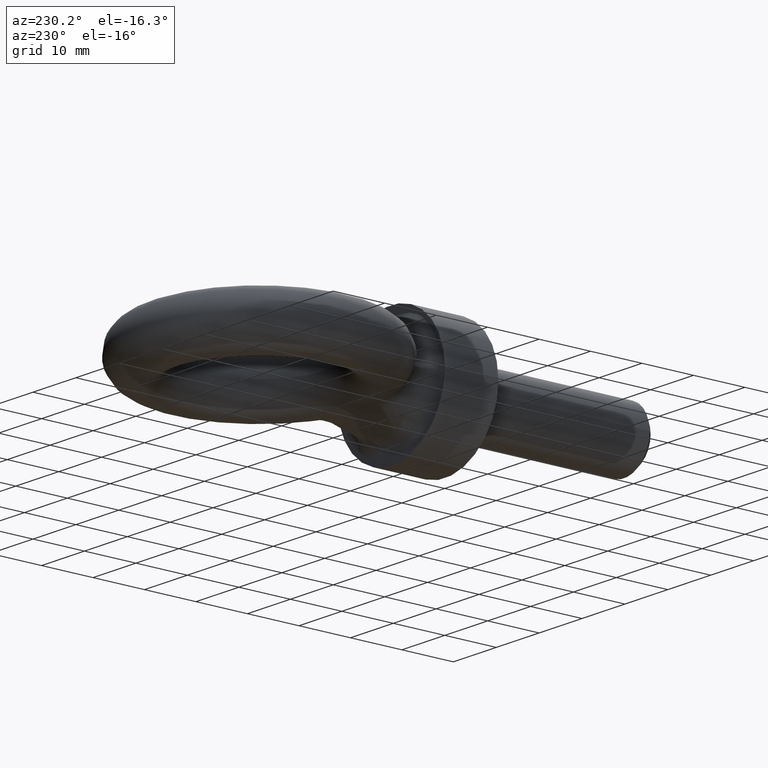
[diagram: clean part render]
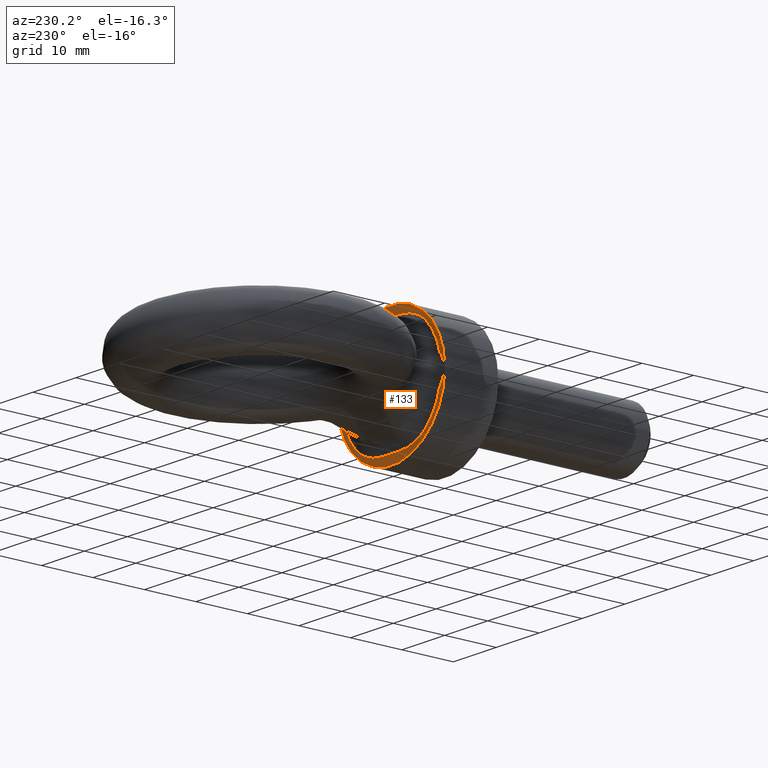
[diagram: same view with one face highlighted and labeled with its STEP entity id]
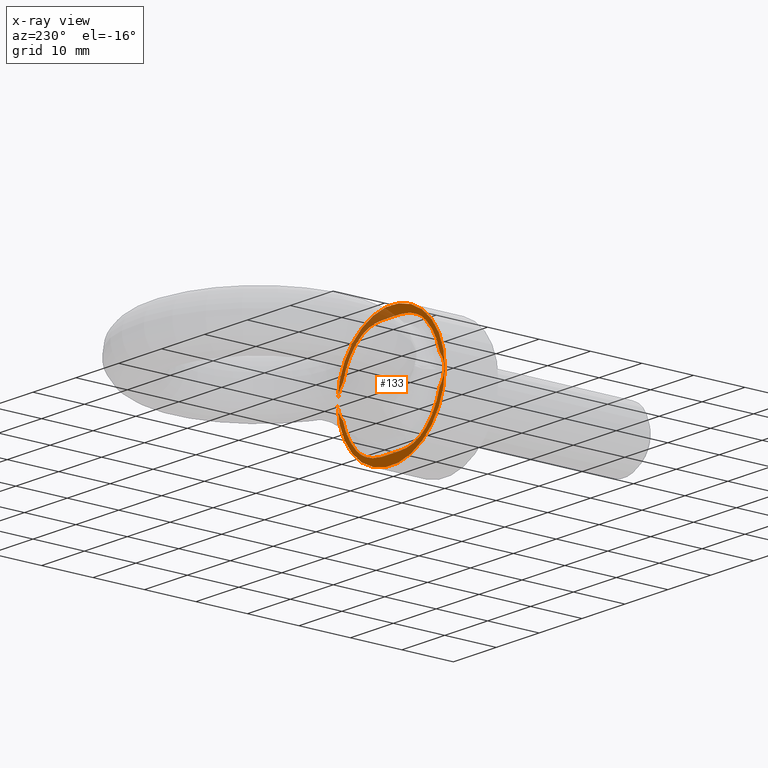
[diagram: x-ray of the same camera — body ghosted, the highlighted face saturated]
A machine part, auxiliary view. The second image highlights one B-rep face of the part: STEP entity #133.
The next image is the same camera in x-ray: the body ghosted, the highlighted face saturated — about 24% of this face is hidden behind the body in this view.
In plain terms, the highlighted planar face has unit normal (0, -1, 0).
Its self-contained STEP definition (entity closure, byte-faithful):
#92=PLANE('',#688);
#95=LINE('',#1176,#99);
#96=LINE('',#1199,#100);
#99=VECTOR('',#795,1.);
#100=VECTOR('',#800,1.);
#133=ADVANCED_FACE('',(#193),#92,.F.);
#193=FACE_OUTER_BOUND('',#238,.T.);
#238=EDGE_LOOP('',(#359,#360,#361,#362,#363,#364,#365,#366,#367,#368,#369,
#370,#371,#372));
#278=CIRCLE('',#682,12.5);
#279=CIRCLE('',#684,11.625);
#280=CIRCLE('',#685,11.625);
#281=CIRCLE('',#686,11.625);
#282=CIRCLE('',#687,11.625);
#359=ORIENTED_EDGE('',*,*,#571,.T.);
#360=ORIENTED_EDGE('',*,*,#572,.T.);
#361=ORIENTED_EDGE('',*,*,#569,.T.);
#362=ORIENTED_EDGE('',*,*,#573,.T.);
#363=ORIENTED_EDGE('',*,*,#574,.T.);
#364=ORIENTED_EDGE('',*,*,#575,.T.);
#365=ORIENTED_EDGE('',*,*,#576,.T.);
#366=ORIENTED_EDGE('',*,*,#577,.T.);
#367=ORIENTED_EDGE('',*,*,#578,.T.);
#368=ORIENTED_EDGE('',*,*,#579,.T.);
#369=ORIENTED_EDGE('',*,*,#580,.T.);
#370=ORIENTED_EDGE('',*,*,#581,.T.);
#371=ORIENTED_EDGE('',*,*,#582,.T.);
#372=ORIENTED_EDGE('',*,*,#583,.T.);
#509=VERTEX_POINT('',#1150);
#510=VERTEX_POINT('',#1151);
#511=VERTEX_POINT('',#1158);
#512=VERTEX_POINT('',#1159);
#513=VERTEX_POINT('',#1168);
#514=VERTEX_POINT('',#1170);
#515=VERTEX_POINT('',#1175);
#516=VERTEX_POINT('',#1177);
#517=VERTEX_POINT('',#1182);
#518=VERTEX_POINT('',#1184);
#519=VERTEX_POINT('',#1191);
#520=VERTEX_POINT('',#1193);
#521=VERTEX_POINT('',#1198);
#522=VERTEX_POINT('',#1200);
#569=EDGE_CURVE('',#509,#510,#278,.T.);
#571=EDGE_CURVE('',#511,#512,#279,.T.);
#572=EDGE_CURVE('',#512,#509,#635,.T.);
#573=EDGE_CURVE('',#510,#513,#636,.T.);
#574=EDGE_CURVE('',#513,#514,#280,.T.);
#575=EDGE_CURVE('',#514,#515,#637,.T.);
#576=EDGE_CURVE('',#515,#516,#95,.T.);
#577=EDGE_CURVE('',#516,#517,#638,.T.);
#578=EDGE_CURVE('',#517,#518,#281,.T.);
#579=EDGE_CURVE('',#518,#519,#639,.T.);
#580=EDGE_CURVE('',#519,#520,#282,.T.);
#581=EDGE_CURVE('',#520,#521,#640,.T.);
#582=EDGE_CURVE('',#521,#522,#96,.T.);
#583=EDGE_CURVE('',#522,#511,#641,.T.);
#635=B_SPLINE_CURVE_WITH_KNOTS('',3,(#1160,#1161,#1162,#1163),
 .UNSPECIFIED.,.F.,.F.,(4,4),(0.,1.),.UNSPECIFIED.);
#636=B_SPLINE_CURVE_WITH_KNOTS('',3,(#1164,#1165,#1166,#1167),
 .UNSPECIFIED.,.F.,.F.,(4,4),(0.,1.),.UNSPECIFIED.);
#637=B_SPLINE_CURVE_WITH_KNOTS('',3,(#1171,#1172,#1173,#1174),
 .UNSPECIFIED.,.F.,.F.,(4,4),(0.,1.),.UNSPECIFIED.);
#638=B_SPLINE_CURVE_WITH_KNOTS('',3,(#1178,#1179,#1180,#1181),
 .UNSPECIFIED.,.F.,.F.,(4,4),(0.,1.),.UNSPECIFIED.);
#639=B_SPLINE_CURVE_WITH_KNOTS('',3,(#1185,#1186,#1187,#1188,#1189,#1190),
 .UNSPECIFIED.,.F.,.F.,(4,2,4),(0.,0.5,1.),.UNSPECIFIED.);
#640=B_SPLINE_CURVE_WITH_KNOTS('',3,(#1194,#1195,#1196,#1197),
 .UNSPECIFIED.,.F.,.F.,(4,4),(0.,1.),.UNSPECIFIED.);
#641=B_SPLINE_CURVE_WITH_KNOTS('',3,(#1201,#1202,#1203,#1204),
 .UNSPECIFIED.,.F.,.F.,(4,4),(0.,1.),.UNSPECIFIED.);
#682=AXIS2_PLACEMENT_3D('',#1149,#787,#788);
#684=AXIS2_PLACEMENT_3D('',#1157,#791,#792);
#685=AXIS2_PLACEMENT_3D('',#1169,#793,#794);
#686=AXIS2_PLACEMENT_3D('',#1183,#796,#797);
#687=AXIS2_PLACEMENT_3D('',#1192,#798,#799);
#688=AXIS2_PLACEMENT_3D('',#1205,#801,#802);
#787=DIRECTION('',(-9.780921661068E-19,1.,0.));
#788=DIRECTION('',(-1.,0.,0.));
#791=DIRECTION('',(9.780921661068E-19,-1.,0.));
#792=DIRECTION('',(1.,0.,0.));
#793=DIRECTION('',(9.780921661068E-19,-1.,0.));
#794=DIRECTION('',(1.,0.,0.));
#795=DIRECTION('',(-1.,-9.780921661068E-19,4.99026615360612E-19));
#796=DIRECTION('',(9.780921661068E-19,-1.,0.));
#797=DIRECTION('',(1.,0.,0.));
#798=DIRECTION('',(9.780921661068E-19,-1.,0.));
#799=DIRECTION('',(1.,0.,0.));
#800=DIRECTION('',(1.,9.780921661068E-19,4.99026615360612E-19));
#801=DIRECTION('',(9.780921661068E-19,-1.,0.));
#802=DIRECTION('',(1.,1.73472347597681E-18,0.));
#1149=CARTESIAN_POINT('',(7.18897742088498E-18,10.4,0.));
#1150=CARTESIAN_POINT('',(12.4913783515275,10.4,-0.464184100320706));
#1151=CARTESIAN_POINT('',(12.4913783515268,10.4,0.464184100338081));
#1157=CARTESIAN_POINT('',(7.18897742088498E-18,10.4,0.));
#1158=CARTESIAN_POINT('',(8.12174842111813,10.4,-8.31732093790213));
#1159=CARTESIAN_POINT('',(11.2361269858455,10.4,-2.98162294027175));
#1160=CARTESIAN_POINT('',(11.2361269858376,10.4,-2.98162294030165));
#1161=CARTESIAN_POINT('',(11.8926002623151,10.4,-2.28083752790108));
#1162=CARTESIAN_POINT('',(12.3727961777914,10.4,-1.41848389364704));
#1163=CARTESIAN_POINT('',(12.4913783515275,10.4,-0.464184100320707));
#1164=CARTESIAN_POINT('',(12.4913783515253,10.4,0.464184100337974));
#1165=CARTESIAN_POINT('',(12.3747009997038,10.4,1.4031546826512));
#1166=CARTESIAN_POINT('',(11.8912262902471,10.4,2.28230424345167));
#1167=CARTESIAN_POINT('',(11.2361269858455,10.4,2.98162294027172));
#1168=CARTESIAN_POINT('',(11.2361269858455,10.4,2.98162294027172));
#1169=CARTESIAN_POINT('',(7.18897742088498E-18,10.4,0.));
#1170=CARTESIAN_POINT('',(8.12174842111812,10.4,8.31732093790214));
#1171=CARTESIAN_POINT('',(8.12174842111812,10.4,8.31732093790214));
#1172=CARTESIAN_POINT('',(6.54735461355843,10.4,9.85469463265551));
#1173=CARTESIAN_POINT('',(4.35818346226172,10.4,10.6076298298875));
#1174=CARTESIAN_POINT('',(2.16160478669443,10.4,10.6076298298875));
#1175=CARTESIAN_POINT('',(2.16160478669442,10.4,10.6076298298875));
#1176=CARTESIAN_POINT('',(12.5,10.4,10.6076298298875));
#1177=CARTESIAN_POINT('',(-2.16160478669443,10.4,10.6076298298875));
#1178=CARTESIAN_POINT('',(-2.16160478669443,10.4,10.6076298298875));
#1179=CARTESIAN_POINT('',(-4.36031897824766,10.4,10.6076298298875));
#1180=CARTESIAN_POINT('',(-6.54226693926599,10.4,9.85966267596828));
#1181=CARTESIAN_POINT('',(-8.12174842111812,10.4,8.31732093790214));
#1182=CARTESIAN_POINT('',(-8.12174842111811,10.4,8.31732093790215));
#1183=CARTESIAN_POINT('',(7.18897742088498E-18,10.4,0.));
#1184=CARTESIAN_POINT('',(-11.3034811739979,10.4,2.71513136865866));
#1185=CARTESIAN_POINT('',(-11.3034811739979,10.4,2.71513136865866));
#1186=CARTESIAN_POINT('',(-11.9383006318588,10.4,1.94760641912689));
#1187=CARTESIAN_POINT('',(-12.3519722706379,10.4,0.998121008299845));
#1188=CARTESIAN_POINT('',(-12.3534444946546,10.4,-0.992576169500232));
#1189=CARTESIAN_POINT('',(-11.9390912650862,10.4,-1.94665050837288));
#1190=CARTESIAN_POINT('',(-11.3034811740049,10.4,-2.71513136862971));
#1191=CARTESIAN_POINT('',(-11.3034811740049,10.4,-2.71513136862969));
#1192=CARTESIAN_POINT('',(7.18897742088498E-18,10.4,0.));
#1193=CARTESIAN_POINT('',(-8.12174842111812,10.4,-8.31732093790214));
#1194=CARTESIAN_POINT('',(-8.12174842111812,10.4,-8.31732093790214));
#1195=CARTESIAN_POINT('',(-6.54735461355844,10.4,-9.8546946326555));
#1196=CARTESIAN_POINT('',(-4.35818346226173,10.4,-10.6076298298875));
#1197=CARTESIAN_POINT('',(-2.16160478669444,10.4,-10.6076298298875));
#1198=CARTESIAN_POINT('',(-2.16160478669444,10.4,-10.6076298298875));
#1199=CARTESIAN_POINT('',(12.5,10.4,-10.6076298298875));
#1200=CARTESIAN_POINT('',(2.16160478669443,10.4,-10.6076298298875));
#1201=CARTESIAN_POINT('',(2.16160478669443,10.4,-10.6076298298875));
#1202=CARTESIAN_POINT('',(4.36031897824766,10.4,-10.6076298298875));
#1203=CARTESIAN_POINT('',(6.542266939266,10.4,-9.85966267596827));
#1204=CARTESIAN_POINT('',(8.12174842111813,10.4,-8.31732093790213));
#1205=CARTESIAN_POINT('',(12.5,10.4,0.));